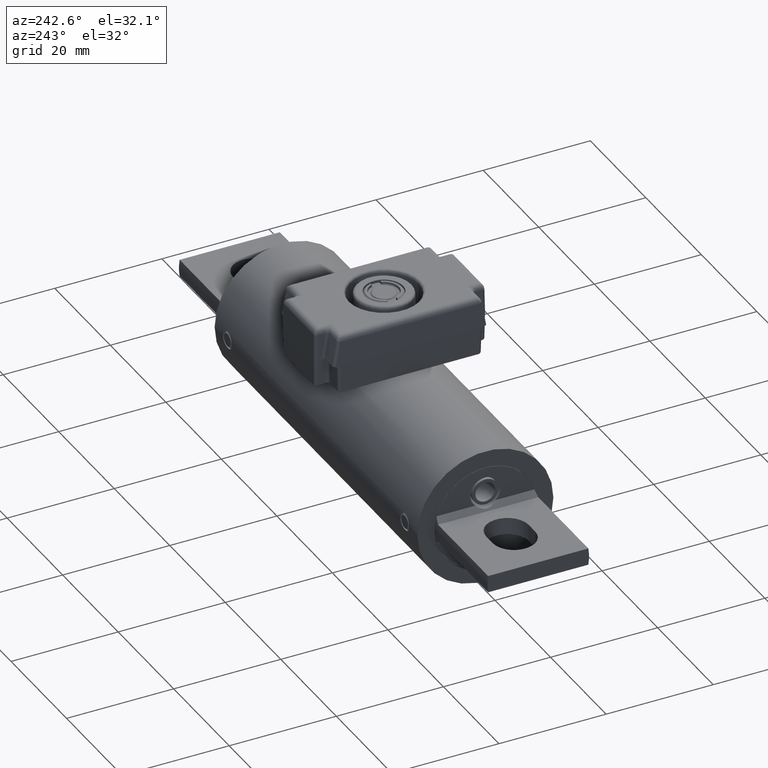
[diagram: clean part render]
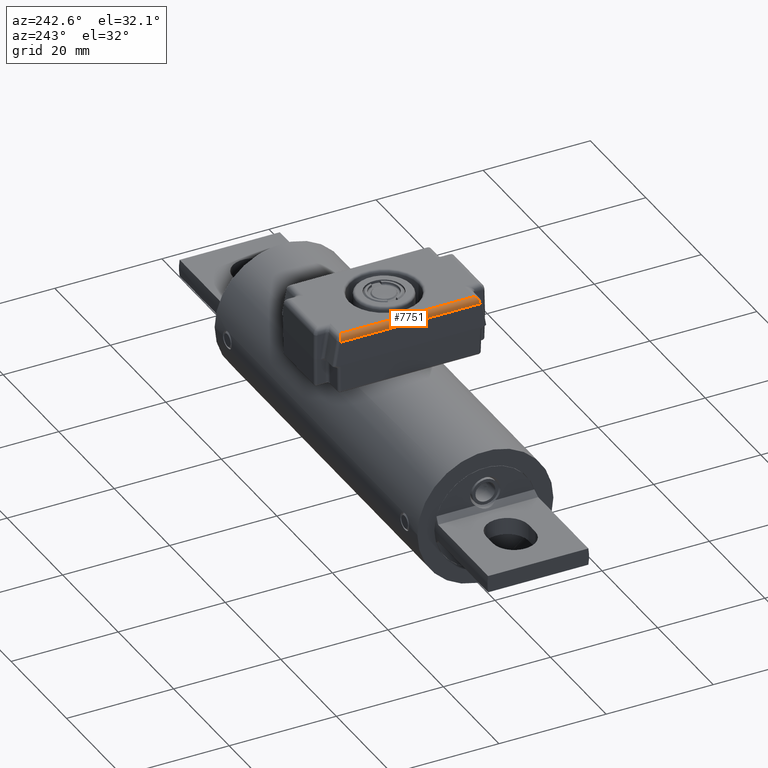
[diagram: same view with one face highlighted and labeled with its STEP entity id]
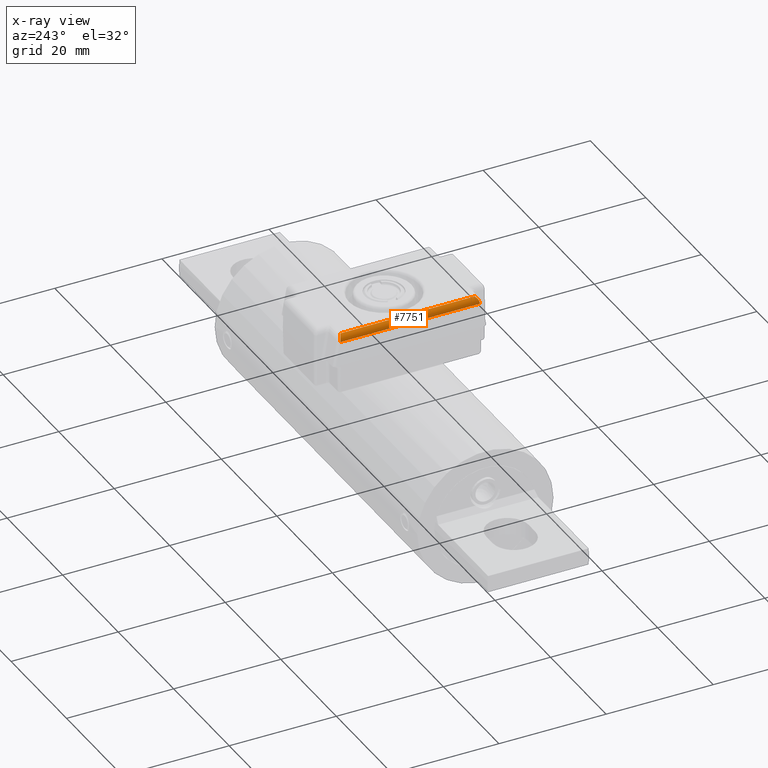
[diagram: x-ray of the same camera — body ghosted, the highlighted face saturated]
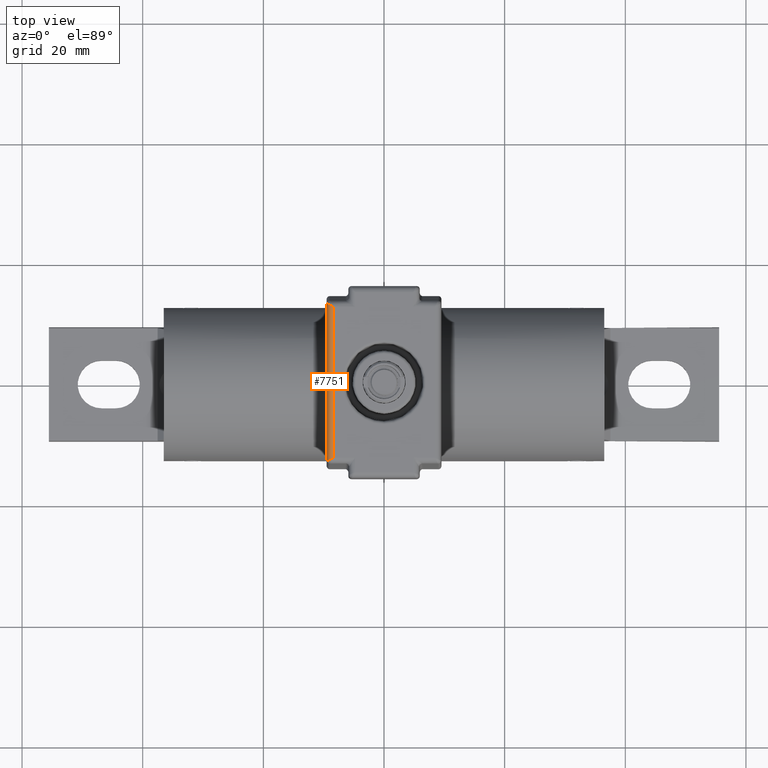
[diagram: same view with one face highlighted and labeled with its STEP entity id]
A machine part, auxiliary view. The second image highlights one B-rep face of the part: STEP entity #7751.
The next image is the same camera in x-ray: the body ghosted, the highlighted face saturated — about 0% of this face is hidden behind the body in this view.
A second angle (top view) of the same face is appended — the face is thin or edge-on in the first view.
In plain terms, the highlighted cylindrical surface (edge-blend (fillet) strip) has radius 1.016 mm, axis along (-0, -1, -0).
Its self-contained STEP definition (entity closure, byte-faithful):
#1986 = ORIENTED_EDGE ( 'NONE', *, *, #37949, .F. ) ;
#2064 = CARTESIAN_POINT ( 'NONE',  ( -0.3516605274288798800, -0.5027501665875578900, 0.9339999999999999400 ) ) ;
#2554 = EDGE_CURVE ( 'NONE', #26805, #34511, #14877, .T. ) ;
#3159 = CARTESIAN_POINT ( 'NONE',  ( -0.3313519951911646500, -0.5059129000807406400, 0.9339999999999999400 ) ) ;
#4607 = DIRECTION ( 'NONE',  ( 4.064165105744147800E-016, 1.000000000000000000, 5.550164946788219100E-017 ) ) ;
#5266 = CARTESIAN_POINT ( 'NONE',  ( -0.3672177656974837100, 0.5105287857218604500, 0.9209459271066770000 ) ) ;
#6329 = ORIENTED_EDGE ( 'NONE', *, *, #17298, .F. ) ;
#6413 = VERTEX_POINT ( 'NONE', #22493 ) ;
#6423 = ORIENTED_EDGE ( 'NONE', *, *, #16856, .F. ) ;
#7334 = ORIENTED_EDGE ( 'NONE', *, *, #20111, .F. ) ;
#7751 = ADVANCED_FACE ( 'NONE', ( #32873 ), #12476, .T. ) ;
#8397 = CARTESIAN_POINT ( 'NONE',  ( -0.3516605274288794300, 0.5027501665875582200, 0.9340000000000000500 ) ) ;
#8597 = CARTESIAN_POINT ( 'NONE',  ( -0.3707443053116527000, 0.5122920555289449700, 0.9009459271066765400 ) ) ;
#9324 = CARTESIAN_POINT ( 'NONE',  ( -0.3711083676065443100, -0.5124740866763902700, 0.8988812272324513400 ) ) ;
#9834 = VERTEX_POINT ( 'NONE', #39187 ) ;
#10282 = VERTEX_POINT ( 'NONE', #31726 ) ;
#10794 =( BOUNDED_CURVE ( )  B_SPLINE_CURVE ( 3, ( #26408, #24140, #27245, #8597 ),
 .UNSPECIFIED., .F., .F. ) 
 B_SPLINE_CURVE_WITH_KNOTS ( ( 4, 4 ),
 ( 4.729842272904634500, 4.886921905584106400 ),
 .UNSPECIFIED. ) 
 CURVE ( )  GEOMETRIC_REPRESENTATION_ITEM ( )  RATIONAL_B_SPLINE_CURVE ( ( 1.000000000000000000, 0.9979448891554190100, 0.9979448891554190100, 1.000000000000000000 ) ) 
 REPRESENTATION_ITEM ( '' )  );
#11368 = CARTESIAN_POINT ( 'NONE',  ( -0.3713093131337989500, -0.5126580749843595600, 0.8967943281404341400 ) ) ;
#11547 = LINE ( 'NONE', #35546, #27122 ) ;
#12437 = LINE ( 'NONE', #3159, #20637 ) ;
#12476 = CYLINDRICAL_SURFACE ( 'NONE', #26593, 0.03999999999999998000 ) ;
#12947 =( BOUNDED_CURVE ( )  B_SPLINE_CURVE ( 3, ( #27008, #5266, #8397, #30124 ),
 .UNSPECIFIED., .F., .F. ) 
 B_SPLINE_CURVE_WITH_KNOTS ( ( 4, 4 ),
 ( 3.316125578789209400, 4.712388980384689700 ),
 .UNSPECIFIED. ) 
 CURVE ( )  GEOMETRIC_REPRESENTATION_ITEM ( )  RATIONAL_B_SPLINE_CURVE ( ( 1.000000000000000000, 0.8440296287459816400, 0.8440296287459816400, 1.000000000000000000 ) ) 
 REPRESENTATION_ITEM ( '' )  );
#14477 = CARTESIAN_POINT ( 'NONE',  ( -0.3707443053116530900, -0.5122920555289445200, 0.9009459271066764300 ) ) ;
#14877 =( BOUNDED_CURVE ( )  B_SPLINE_CURVE ( 3, ( #36244, #11368, #9324, #14477 ),
 .UNSPECIFIED., .F., .F. ) 
 B_SPLINE_CURVE_WITH_KNOTS ( ( 4, 4 ),
 ( 1.588249619314838300, 1.745329251994310400 ),
 .UNSPECIFIED. ) 
 CURVE ( )  GEOMETRIC_REPRESENTATION_ITEM ( )  RATIONAL_B_SPLINE_CURVE ( ( 1.000000000000000000, 0.9979448891554190100, 0.9979448891554190100, 1.000000000000000000 ) ) 
 REPRESENTATION_ITEM ( '' )  );
#16856 = EDGE_CURVE ( 'NONE', #26805, #10282, #11547, .T. ) ;
#17035 = CARTESIAN_POINT ( 'NONE',  ( -0.3313519951911646500, -0.4925959004687003300, 0.9339999999999999400 ) ) ;
#17298 = EDGE_CURVE ( 'NONE', #10282, #9834, #10794, .T. ) ;
#17459 = CARTESIAN_POINT ( 'NONE',  ( -0.3672177656974842100, -0.5105287857218601100, 0.9209459271066767800 ) ) ;
#20111 = EDGE_CURVE ( 'NONE', #6413, #25426, #12437, .T. ) ;
#20637 = VECTOR ( 'NONE', #24888, 39.37007874015748100 ) ;
#22493 = CARTESIAN_POINT ( 'NONE',  ( -0.3313519951911642600, 0.4925959004687006600, 0.9339999999999999400 ) ) ;
#23333 = DIRECTION ( 'NONE',  ( -4.064165105744147800E-016, -1.000000000000000000, -5.550164946788219100E-017 ) ) ;
#23775 = CARTESIAN_POINT ( 'NONE',  ( -0.3313519951911646500, -0.4925959004687003300, 0.9339999999999999400 ) ) ;
#24140 = CARTESIAN_POINT ( 'NONE',  ( -0.3713093131337985600, 0.5126580749843598900, 0.8967943281404342500 ) ) ;
#24238 = CARTESIAN_POINT ( 'NONE',  ( -0.3707443053116530900, -0.5122920555289445200, 0.9009459271066764300 ) ) ;
#24508 = ORIENTED_EDGE ( 'NONE', *, *, #39029, .T. ) ;
#24888 = DIRECTION ( 'NONE',  ( -4.064165105744147800E-016, -1.000000000000000000, -5.550164946788219100E-017 ) ) ;
#25426 = VERTEX_POINT ( 'NONE', #17035 ) ;
#26408 = CARTESIAN_POINT ( 'NONE',  ( -0.3713459029974198200, 0.5128428861037519500, 0.8946980962574913000 ) ) ;
#26593 = AXIS2_PLACEMENT_3D ( 'NONE', #35683, #23333, #38944 ) ;
#26805 = VERTEX_POINT ( 'NONE', #36649 ) ;
#27008 = CARTESIAN_POINT ( 'NONE',  ( -0.3707443053116527000, 0.5122920555289449700, 0.9009459271066765400 ) ) ;
#27122 = VECTOR ( 'NONE', #4607, 39.37007874015748100 ) ;
#27245 = CARTESIAN_POINT ( 'NONE',  ( -0.3711083676065439800, 0.5124740866763904900, 0.8988812272324515600 ) ) ;
#29311 = ORIENTED_EDGE ( 'NONE', *, *, #2554, .T. ) ;
#29438 = EDGE_LOOP ( 'NONE', ( #6329, #6423, #29311, #24508, #7334, #1986 ) ) ;
#30124 = CARTESIAN_POINT ( 'NONE',  ( -0.3313519951911642600, 0.4925959004687006600, 0.9339999999999999400 ) ) ;
#31726 = CARTESIAN_POINT ( 'NONE',  ( -0.3713459029974198200, 0.5128428861037519500, 0.8946980962574913000 ) ) ;
#32873 = FACE_OUTER_BOUND ( 'NONE', #29438, .T. ) ;
#34080 =( BOUNDED_CURVE ( )  B_SPLINE_CURVE ( 3, ( #39246, #17459, #2064, #23775 ),
 .UNSPECIFIED., .F., .F. ) 
 B_SPLINE_CURVE_WITH_KNOTS ( ( 4, 4 ),
 ( 3.316125578789206800, 4.712388980384689700 ),
 .UNSPECIFIED. ) 
 CURVE ( )  GEOMETRIC_REPRESENTATION_ITEM ( )  RATIONAL_B_SPLINE_CURVE ( ( 1.000000000000000000, 0.8440296287459810900, 0.8440296287459810900, 1.000000000000000000 ) ) 
 REPRESENTATION_ITEM ( '' )  );
#34511 = VERTEX_POINT ( 'NONE', #24238 ) ;
#35546 = CARTESIAN_POINT ( 'NONE',  ( -0.3713459029974198200, 0.5059129000807409700, 0.8946980962574913000 ) ) ;
#35683 = CARTESIAN_POINT ( 'NONE',  ( -0.3313519951911642600, 0.5300000000000008000, 0.8939999999999999100 ) ) ;
#36244 = CARTESIAN_POINT ( 'NONE',  ( -0.3713459029974202100, -0.5128428861037515100, 0.8946980962574911900 ) ) ;
#36649 = CARTESIAN_POINT ( 'NONE',  ( -0.3713459029974202100, -0.5128428861037515100, 0.8946980962574911900 ) ) ;
#37949 = EDGE_CURVE ( 'NONE', #9834, #6413, #12947, .T. ) ;
#38944 = DIRECTION ( 'NONE',  ( 1.000000000000000000, 0.0000000000000000000, 0.0000000000000000000 ) ) ;
#39029 = EDGE_CURVE ( 'NONE', #34511, #25426, #34080, .T. ) ;
#39187 = CARTESIAN_POINT ( 'NONE',  ( -0.3707443053116527000, 0.5122920555289449700, 0.9009459271066765400 ) ) ;
#39246 = CARTESIAN_POINT ( 'NONE',  ( -0.3707443053116530900, -0.5122920555289445200, 0.9009459271066764300 ) ) ;